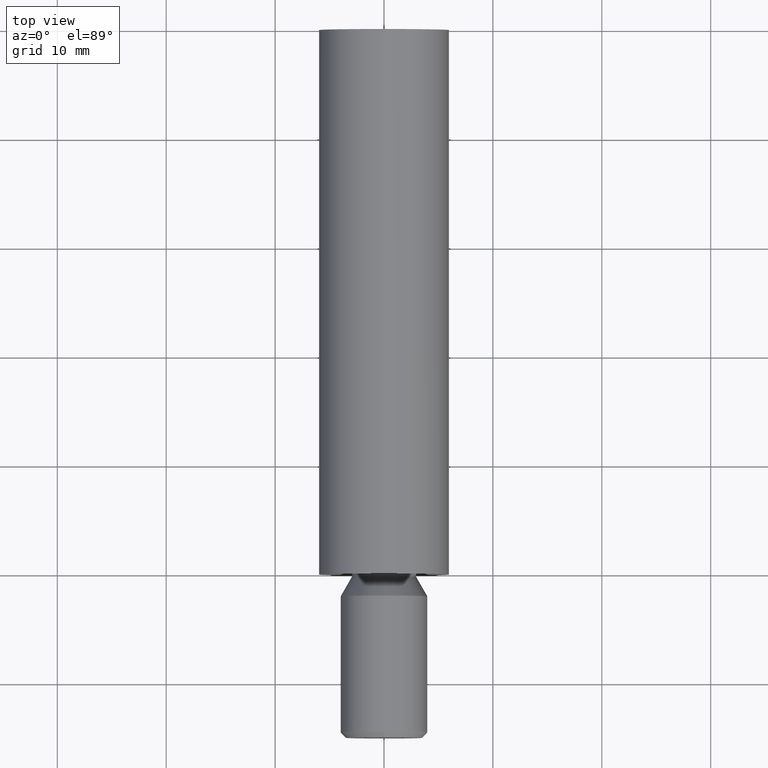
[diagram: clean part render]
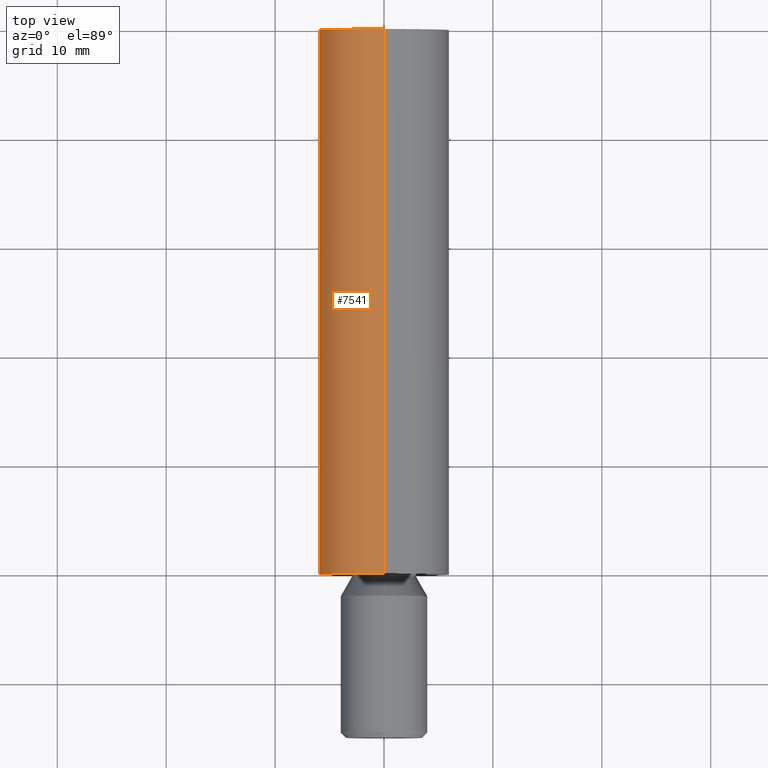
[diagram: same view with one face highlighted and labeled with its STEP entity id]
A machine part, top view. The second image highlights one B-rep face of the part: STEP entity #7541.
In plain terms, the highlighted cylindrical surface (partial cylindrical patch) has radius 6 mm, axis along (-0, -1, -0).
Its self-contained STEP definition (entity closure, byte-faithful):
#173 = DIRECTION ( 'NONE',  ( 0.0000000000000000000, 0.0000000000000000000, -1.000000000000000000 ) ) ;
#785 = DIRECTION ( 'NONE',  ( -0.0000000000000000000, -1.000000000000000000, -0.0000000000000000000 ) ) ;
#913 = VECTOR ( 'NONE', #785, 1000.000000000000000 ) ;
#1444 = CIRCLE ( 'NONE', #10639, 6.000000000000012400 ) ;
#2035 = CIRCLE ( 'NONE', #6375, 5.999999999999999100 ) ;
#2100 = EDGE_CURVE ( 'NONE', #4167, #5661, #10799, .T. ) ;
#2283 = CARTESIAN_POINT ( 'NONE',  ( 0.0000000000000000000, 0.0000000000000000000, 0.0000000000000000000 ) ) ;
#3670 = VERTEX_POINT ( 'NONE', #12388 ) ;
#3925 = CARTESIAN_POINT ( 'NONE',  ( 7.347880794884125700E-016, -15.00000000000000000, 6.000000000000005300 ) ) ;
#4068 = CARTESIAN_POINT ( 'NONE',  ( 0.0000000000000000000, -15.00000000000000000, -6.000000000000005300 ) ) ;
#4167 = VERTEX_POINT ( 'NONE', #6294 ) ;
#5086 = DIRECTION ( 'NONE',  ( -0.0000000000000000000, -1.000000000000000000, -0.0000000000000000000 ) ) ;
#5272 = VERTEX_POINT ( 'NONE', #9574 ) ;
#5367 = EDGE_LOOP ( 'NONE', ( #11823, #6008, #12394, #8337 ) ) ;
#5661 = VERTEX_POINT ( 'NONE', #11554 ) ;
#5888 = DIRECTION ( 'NONE',  ( -0.0000000000000000000, -1.000000000000000000, -0.0000000000000000000 ) ) ;
#6008 = ORIENTED_EDGE ( 'NONE', *, *, #6887, .T. ) ;
#6111 = DIRECTION ( 'NONE',  ( -0.0000000000000000000, -1.000000000000000000, -0.0000000000000000000 ) ) ;
#6294 = CARTESIAN_POINT ( 'NONE',  ( 0.0000000000000000000, 50.00000000000000000, -5.999999999999999100 ) ) ;
#6375 = AXIS2_PLACEMENT_3D ( 'NONE', #12777, #5888, #173 ) ;
#6810 = DIRECTION ( 'NONE',  ( 0.0000000000000000000, 0.0000000000000000000, -1.000000000000000000 ) ) ;
#6887 = EDGE_CURVE ( 'NONE', #5272, #4167, #2035, .T. ) ;
#7263 = LINE ( 'NONE', #3925, #13031 ) ;
#7541 = ADVANCED_FACE ( 'NONE', ( #9554 ), #9761, .T. ) ;
#7893 = AXIS2_PLACEMENT_3D ( 'NONE', #11909, #6111, #14194 ) ;
#8337 = ORIENTED_EDGE ( 'NONE', *, *, #10909, .F. ) ;
#9554 = FACE_OUTER_BOUND ( 'NONE', #5367, .T. ) ;
#9574 = CARTESIAN_POINT ( 'NONE',  ( 7.347880794884123700E-016, 50.00000000000000000, 5.999999999999999100 ) ) ;
#9761 = CYLINDRICAL_SURFACE ( 'NONE', #7893, 6.000000000000005300 ) ;
#10639 = AXIS2_PLACEMENT_3D ( 'NONE', #2283, #13752, #6810 ) ;
#10799 = LINE ( 'NONE', #4068, #913 ) ;
#10909 = EDGE_CURVE ( 'NONE', #3670, #5661, #1444, .T. ) ;
#11554 = CARTESIAN_POINT ( 'NONE',  ( 0.0000000000000000000, -2.710505431213761100E-017, -6.000000000000009800 ) ) ;
#11823 = ORIENTED_EDGE ( 'NONE', *, *, #14054, .F. ) ;
#11909 = CARTESIAN_POINT ( 'NONE',  ( 0.0000000000000000000, -15.00000000000000000, 0.0000000000000000000 ) ) ;
#12388 = CARTESIAN_POINT ( 'NONE',  ( 7.347880794884131600E-016, -2.710505431213761100E-017, 6.000000000000009800 ) ) ;
#12394 = ORIENTED_EDGE ( 'NONE', *, *, #2100, .T. ) ;
#12777 = CARTESIAN_POINT ( 'NONE',  ( 0.0000000000000000000, 50.00000000000000000, 0.0000000000000000000 ) ) ;
#13031 = VECTOR ( 'NONE', #5086, 1000.000000000000000 ) ;
#13752 = DIRECTION ( 'NONE',  ( -0.0000000000000000000, -1.000000000000000000, -0.0000000000000000000 ) ) ;
#14054 = EDGE_CURVE ( 'NONE', #5272, #3670, #7263, .T. ) ;
#14194 = DIRECTION ( 'NONE',  ( 0.0000000000000000000, 0.0000000000000000000, -1.000000000000000000 ) ) ;